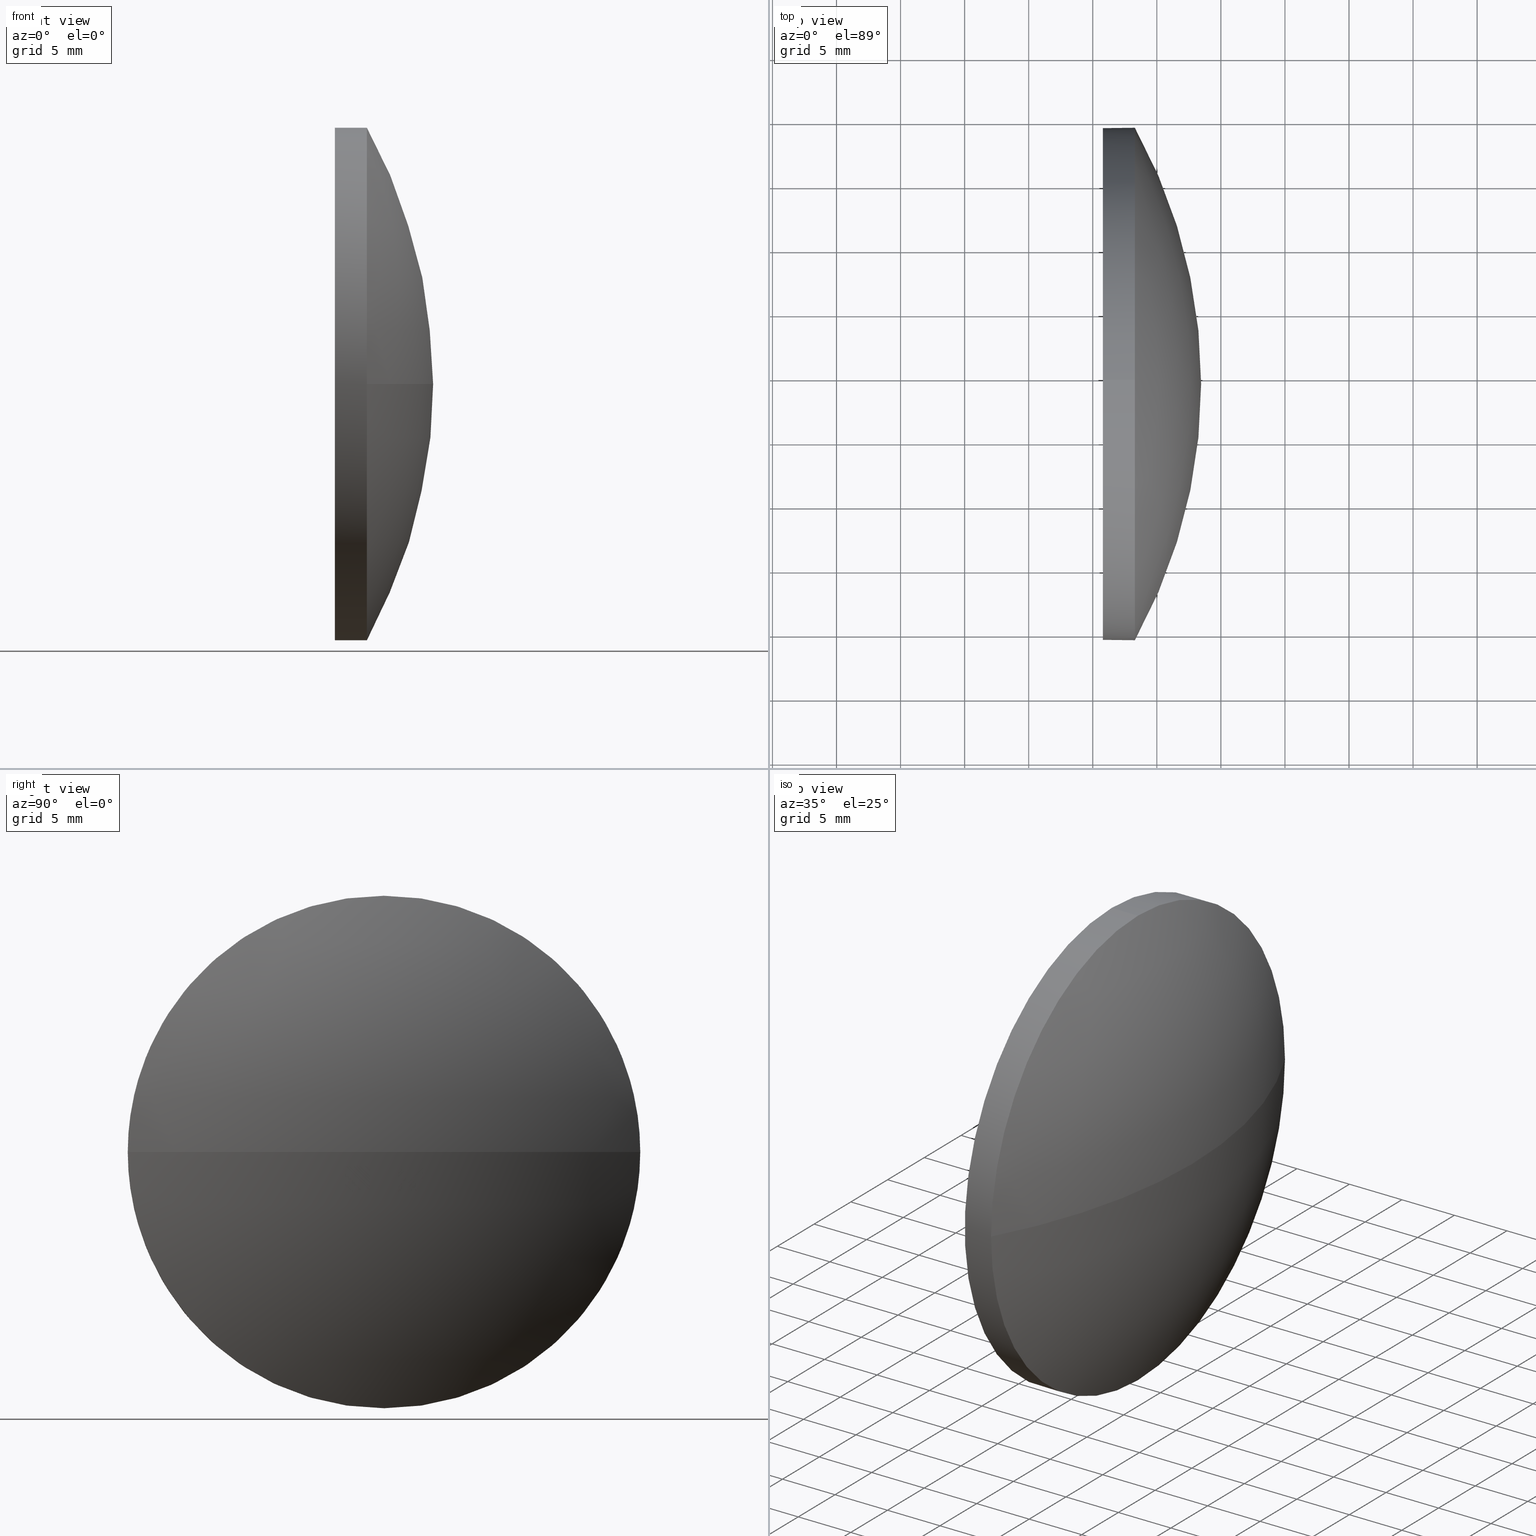
[diagram: canonical four-view strip — front | top / right | iso, engineering-drawing reading convention]
A machine part, canonical four-view strip (front | top / right | iso — engineering-drawing reading convention). The complete STEP part file that produces these views, byte-faithful:
ISO-10303-21;
HEADER;
FILE_DESCRIPTION (( 'STEP AP214' ),
    '1' );
FILE_NAME ('100229.STEP',
    '2019-05-24T06:13:26',
    ( '' ),
    ( '' ),
    'SwSTEP 2.0',
    'SolidWorks 2016',
    '' );
FILE_SCHEMA (( 'AUTOMOTIVE_DESIGN' ));
ENDSEC;

DATA;
#1 = PRESENTATION_LAYER_ASSIGNMENT (  '', '', ( #154 ) ) ;
#2 = CLOSED_SHELL ( 'NONE', ( #176, #162, #117, #180, #72 ) ) ;
#3 = AXIS2_PLACEMENT_3D ( 'NONE', #172, #131, #116 ) ;
#4 = COLOUR_RGB ( '',1.000000000000000000, 1.000000000000000000, 1.000000000000000000 ) ;
#5 = EDGE_CURVE ( 'NONE', #145, #112, #186, .T. ) ;
#6 = CARTESIAN_POINT ( 'NONE',  ( 413.2899099392475400, -30.60755764646728500, 0.0000000000000000000 ) ) ;
#7 = PRESENTATION_STYLE_ASSIGNMENT (( #113 ) ) ;
#8 = DIRECTION ( 'NONE',  ( -1.000000000000000000, -0.0000000000000000000, -0.0000000000000000000 ) ) ;
#9 = CIRCLE ( 'NONE', #114, 20.00000000000000400 ) ;
#10 = APPLICATION_PROTOCOL_DEFINITION ( 'draft international standard', 'automotive_design', 1998, #185 ) ;
#11 = CYLINDRICAL_SURFACE ( 'NONE', #54, 20.00000000000000400 ) ;
#12 = VERTEX_POINT ( 'NONE', #24 ) ;
#13 = LINE ( 'NONE', #149, #20 ) ;
#14 = MECHANICAL_DESIGN_GEOMETRIC_PRESENTATION_REPRESENTATION (  '', ( #154 ), #78 ) ;
#15 = CARTESIAN_POINT ( 'NONE',  ( 410.7899099392475400, -30.60755764646728500, 0.0000000000000000000 ) ) ;
#16 = VERTEX_POINT ( 'NONE', #148 ) ;
#17 = SHAPE_DEFINITION_REPRESENTATION ( #106, #67 ) ;
#18 = VERTEX_POINT ( 'NONE', #161 ) ;
#19 = DIRECTION ( 'NONE',  ( 0.0000000000000000000, 0.0000000000000000000, 1.000000000000000000 ) ) ;
#20 = VECTOR ( 'NONE', #146, 1000.000000000000000 ) ;
#21 = FACE_OUTER_BOUND ( 'NONE', #50, .T. ) ;
#22 = AXIS2_PLACEMENT_3D ( 'NONE', #143, #110, #182 ) ;
#23 = AXIS2_PLACEMENT_3D ( 'NONE', #15, #173, #115 ) ;
#24 = CARTESIAN_POINT ( 'NONE',  ( 413.2899099392475400, -30.60755764646728500, 20.00000000000000400 ) ) ;
#25 = CIRCLE ( 'NONE', #177, 41.26971953578328800 ) ;
#26 = DIRECTION ( 'NONE',  ( 0.0000000000000000000, -1.000000000000000000, -1.224646799147353200E-016 ) ) ;
#27 = AXIS2_PLACEMENT_3D ( 'NONE', #57, #31, #164 ) ;
#28 = SPHERICAL_SURFACE ( 'NONE', #105, 41.26971953578328800 ) ;
#29 = CARTESIAN_POINT ( 'NONE',  ( 413.2899099392475400, -10.60755764646727600, 2.449293598294704500E-015 ) ) ;
#30 = CYLINDRICAL_SURFACE ( 'NONE', #66, 20.00000000000000400 ) ;
#31 = DIRECTION ( 'NONE',  ( -1.000000000000000000, -0.0000000000000000000, -0.0000000000000000000 ) ) ;
#32 = DIRECTION ( 'NONE',  ( 0.0000000000000000000, -1.000000000000000000, 0.0000000000000000000 ) ) ;
#33 = PRODUCT_DEFINITION ( 'δ֪', '', #48, #156 ) ;
#34 = MECHANICAL_DESIGN_GEOMETRIC_PRESENTATION_REPRESENTATION (  '', ( #44 ), #184 ) ;
#35 = ORIENTED_EDGE ( 'NONE', *, *, #60, .F. ) ;
#36 = AXIS2_PLACEMENT_3D ( 'NONE', #56, #8, #104 ) ;
#37 = SURFACE_STYLE_FILL_AREA ( #52 ) ;
#38 =( NAMED_UNIT ( * ) SI_UNIT ( $, .STERADIAN. ) SOLID_ANGLE_UNIT ( ) );
#39 = EDGE_CURVE ( 'NONE', #12, #145, #13, .T. ) ;
#40 = MANIFOLD_SOLID_BREP ( '��ת1', #2 ) ;
#41 = CIRCLE ( 'NONE', #36, 20.00000000000000400 ) ;
#42 = ORIENTED_EDGE ( 'NONE', *, *, #153, .F. ) ;
#43 = DIRECTION ( 'NONE',  ( 0.0000000000000000000, 0.0000000000000000000, 1.000000000000000000 ) ) ;
#44 = STYLED_ITEM ( 'NONE', ( #7 ), #40 ) ;
#45 = VECTOR ( 'NONE', #163, 1000.000000000000000 ) ;
#46 = APPLICATION_PROTOCOL_DEFINITION ( 'draft international standard', 'automotive_design', 1998, #168 ) ;
#47 = VERTEX_POINT ( 'NONE', #174 ) ;
#48 = PRODUCT_DEFINITION_FORMATION_WITH_SPECIFIED_SOURCE ( '�κ�', '', #91, .NOT_KNOWN. ) ;
#49 = PRESENTATION_LAYER_ASSIGNMENT (  '', '', ( #44 ) ) ;
#50 = EDGE_LOOP ( 'NONE', ( #83, #137, #58, #109, #42 ) ) ;
#51 = FILL_AREA_STYLE_COLOUR ( '', #4 ) ;
#52 = FILL_AREA_STYLE ('',( #51 ) ) ;
#53 = CARTESIAN_POINT ( 'NONE',  ( 410.7899099392475400, -30.60755764646728500, 0.0000000000000000000 ) ) ;
#54 = AXIS2_PLACEMENT_3D ( 'NONE', #88, #178, #150 ) ;
#55 = DIRECTION ( 'NONE',  ( -1.000000000000000000, -0.0000000000000000000, -0.0000000000000000000 ) ) ;
#56 = CARTESIAN_POINT ( 'NONE',  ( 413.2899099392475400, -30.60755764646728500, 0.0000000000000000000 ) ) ;
#57 = CARTESIAN_POINT ( 'NONE',  ( 413.2899099392475400, -30.60755764646728500, 0.0000000000000000000 ) ) ;
#58 = ORIENTED_EDGE ( 'NONE', *, *, #92, .T. ) ;
#59 = CARTESIAN_POINT ( 'NONE',  ( 410.7899099392475400, -30.60755764646728100, -20.00000000000000400 ) ) ;
#60 = EDGE_CURVE ( 'NONE', #18, #179, #25, .T. ) ;
#61 = SURFACE_SIDE_STYLE ('',( #155 ) ) ;
#62 =( NAMED_UNIT ( * ) PLANE_ANGLE_UNIT ( ) SI_UNIT ( $, .RADIAN. ) );
#63 = EDGE_LOOP ( 'NONE', ( #157, #76, #125, #118 ) ) ;
#64 = EDGE_CURVE ( 'NONE', #18, #16, #183, .T. ) ;
#65 = SPHERICAL_SURFACE ( 'NONE', #84, 41.26971953578328800 ) ;
#66 = AXIS2_PLACEMENT_3D ( 'NONE', #139, #74, #80 ) ;
#67 = ADVANCED_BREP_SHAPE_REPRESENTATION ( '100229', ( #40, #22 ), #128 ) ;
#68 = DIRECTION ( 'NONE',  ( 0.0000000000000000000, 0.0000000000000000000, -1.000000000000000000 ) ) ;
#69 = PRODUCT_RELATED_PRODUCT_CATEGORY ( 'part', '', ( #91 ) ) ;
#70 = DIRECTION ( 'NONE',  ( 1.000000000000000000, 0.0000000000000000000, 0.0000000000000000000 ) ) ;
#71 = ORIENTED_EDGE ( 'NONE', *, *, #127, .F. ) ;
#72 = ADVANCED_FACE ( 'NONE', ( #147 ), #159, .F. ) ;
#73 = AXIS2_PLACEMENT_3D ( 'NONE', #53, #70, #68 ) ;
#74 = DIRECTION ( 'NONE',  ( -1.000000000000000000, -0.0000000000000000000, -0.0000000000000000000 ) ) ;
#75 = DIRECTION ( 'NONE',  ( 0.0000000000000000000, 0.0000000000000000000, 1.000000000000000000 ) ) ;
#76 = ORIENTED_EDGE ( 'NONE', *, *, #60, .T. ) ;
#77 =( LENGTH_UNIT ( ) NAMED_UNIT ( * ) SI_UNIT ( .MILLI., .METRE. ) );
#78 =( GEOMETRIC_REPRESENTATION_CONTEXT ( 3 ) GLOBAL_UNCERTAINTY_ASSIGNED_CONTEXT ( ( #82 ) ) GLOBAL_UNIT_ASSIGNED_CONTEXT ( ( #81, #141, #126 ) ) REPRESENTATION_CONTEXT ( 'NONE', 'WORKASPACE' ) );
#79 = ORIENTED_EDGE ( 'NONE', *, *, #153, .T. ) ;
#80 = DIRECTION ( 'NONE',  ( 0.0000000000000000000, 0.0000000000000000000, 1.000000000000000000 ) ) ;
#81 =( LENGTH_UNIT ( ) NAMED_UNIT ( * ) SI_UNIT ( .MILLI., .METRE. ) );
#82 = UNCERTAINTY_MEASURE_WITH_UNIT (LENGTH_MEASURE( 1.000000000000000100E-005 ), #81, 'distance_accuracy_value', 'NONE');
#83 = ORIENTED_EDGE ( 'NONE', *, *, #94, .F. ) ;
#84 = AXIS2_PLACEMENT_3D ( 'NONE', #124, #43, #32 ) ;
#85 = ORIENTED_EDGE ( 'NONE', *, *, #5, .F. ) ;
#86 = AXIS2_PLACEMENT_3D ( 'NONE', #6, #120, #122 ) ;
#87 =( LENGTH_UNIT ( ) NAMED_UNIT ( * ) SI_UNIT ( .MILLI., .METRE. ) );
#88 = CARTESIAN_POINT ( 'NONE',  ( 406.8249563282615800, -30.60755764646728500, 0.0000000000000000000 ) ) ;
#89 = CARTESIAN_POINT ( 'NONE',  ( 406.8249563282615800, -30.60755764646728100, -20.00000000000000400 ) ) ;
#90 = ORIENTED_EDGE ( 'NONE', *, *, #64, .T. ) ;
#91 = PRODUCT ( '100229', '100229', '', ( #166 ) ) ;
#92 = EDGE_CURVE ( 'NONE', #16, #12, #107, .T. ) ;
#93 = FILL_AREA_STYLE ('',( #140 ) ) ;
#94 = EDGE_CURVE ( 'NONE', #47, #112, #102, .T. ) ;
#95 = EDGE_LOOP ( 'NONE', ( #103, #169, #85, #101, #123 ) ) ;
#96 = AXIS2_PLACEMENT_3D ( 'NONE', #119, #55, #138 ) ;
#97 = PRESENTATION_STYLE_ASSIGNMENT (( #108 ) ) ;
#98 = FACE_OUTER_BOUND ( 'NONE', #63, .T. ) ;
#99 = UNCERTAINTY_MEASURE_WITH_UNIT (LENGTH_MEASURE( 1.000000000000000100E-005 ), #77, 'distance_accuracy_value', 'NONE');
#100 = EDGE_CURVE ( 'NONE', #179, #47, #151, .T. ) ;
#101 = ORIENTED_EDGE ( 'NONE', *, *, #39, .F. ) ;
#102 = LINE ( 'NONE', #89, #45 ) ;
#103 = ORIENTED_EDGE ( 'NONE', *, *, #100, .T. ) ;
#104 = DIRECTION ( 'NONE',  ( 0.0000000000000000000, 0.0000000000000000000, 1.000000000000000000 ) ) ;
#105 = AXIS2_PLACEMENT_3D ( 'NONE', #152, #75, #181 ) ;
#106 = PRODUCT_DEFINITION_SHAPE ( 'NONE', 'NONE',  #33 ) ;
#107 = CIRCLE ( 'NONE', #86, 20.00000000000000400 ) ;
#108 = SURFACE_STYLE_USAGE ( .BOTH. , #61 ) ;
#109 = ORIENTED_EDGE ( 'NONE', *, *, #39, .T. ) ;
#110 = DIRECTION ( 'NONE',  ( 0.0000000000000000000, 0.0000000000000000000, 1.000000000000000000 ) ) ;
#111 = CIRCLE ( 'NONE', #96, 20.00000000000000400 ) ;
#112 = VERTEX_POINT ( 'NONE', #59 ) ;
#113 = SURFACE_STYLE_USAGE ( .BOTH. , #134 ) ;
#114 = AXIS2_PLACEMENT_3D ( 'NONE', #175, #136, #19 ) ;
#115 = DIRECTION ( 'NONE',  ( 0.0000000000000000000, 0.0000000000000000000, 1.000000000000000000 ) ) ;
#116 = DIRECTION ( 'NONE',  ( -1.000000000000000000, 0.0000000000000000000, 0.0000000000000000000 ) ) ;
#117 = ADVANCED_FACE ( 'NONE', ( #165 ), #65, .T. ) ;
#118 = ORIENTED_EDGE ( 'NONE', *, *, #92, .F. ) ;
#119 = CARTESIAN_POINT ( 'NONE',  ( 410.7899099392475400, -30.60755764646728500, 0.0000000000000000000 ) ) ;
#120 = DIRECTION ( 'NONE',  ( -1.000000000000000000, -0.0000000000000000000, -0.0000000000000000000 ) ) ;
#121 = CARTESIAN_POINT ( 'NONE',  ( 410.7899099392475400, -30.60755764646728500, 20.00000000000000400 ) ) ;
#122 = DIRECTION ( 'NONE',  ( 0.0000000000000000000, 0.0000000000000000000, 1.000000000000000000 ) ) ;
#123 = ORIENTED_EDGE ( 'NONE', *, *, #170, .T. ) ;
#124 = CARTESIAN_POINT ( 'NONE',  ( 377.1901904034642700, -30.60755764646726400, 0.0000000000000000000 ) ) ;
#125 = ORIENTED_EDGE ( 'NONE', *, *, #170, .F. ) ;
#126 =( NAMED_UNIT ( * ) SI_UNIT ( $, .STERADIAN. ) SOLID_ANGLE_UNIT ( ) );
#127 = EDGE_CURVE ( 'NONE', #47, #16, #41, .T. ) ;
#128 =( GEOMETRIC_REPRESENTATION_CONTEXT ( 3 ) GLOBAL_UNCERTAINTY_ASSIGNED_CONTEXT ( ( #99 ) ) GLOBAL_UNIT_ASSIGNED_CONTEXT ( ( #77, #62, #144 ) ) REPRESENTATION_CONTEXT ( 'NONE', 'WORKASPACE' ) );
#129 = ORIENTED_EDGE ( 'NONE', *, *, #5, .T. ) ;
#130 = ORIENTED_EDGE ( 'NONE', *, *, #100, .F. ) ;
#131 = DIRECTION ( 'NONE',  ( 0.0000000000000000000, 0.0000000000000000000, -1.000000000000000000 ) ) ;
#132 =( NAMED_UNIT ( * ) PLANE_ANGLE_UNIT ( ) SI_UNIT ( $, .RADIAN. ) );
#133 = COLOUR_RGB ( '',1.000000000000000000, 1.000000000000000000, 1.000000000000000000 ) ;
#134 = SURFACE_SIDE_STYLE ('',( #37 ) ) ;
#135 = CARTESIAN_POINT ( 'NONE',  ( 377.1901904034642700, -30.60755764646726400, 0.0000000000000000000 ) ) ;
#136 = DIRECTION ( 'NONE',  ( -1.000000000000000000, -0.0000000000000000000, -0.0000000000000000000 ) ) ;
#137 = ORIENTED_EDGE ( 'NONE', *, *, #127, .T. ) ;
#138 = DIRECTION ( 'NONE',  ( 0.0000000000000000000, 0.0000000000000000000, 1.000000000000000000 ) ) ;
#139 = CARTESIAN_POINT ( 'NONE',  ( 406.8249563282615800, -30.60755764646728500, 0.0000000000000000000 ) ) ;
#140 = FILL_AREA_STYLE_COLOUR ( '', #133 ) ;
#141 =( NAMED_UNIT ( * ) PLANE_ANGLE_UNIT ( ) SI_UNIT ( $, .RADIAN. ) );
#142 = UNCERTAINTY_MEASURE_WITH_UNIT (LENGTH_MEASURE( 1.000000000000000100E-005 ), #87, 'distance_accuracy_value', 'NONE');
#143 = CARTESIAN_POINT ( 'NONE',  ( 0.0000000000000000000, 0.0000000000000000000, 0.0000000000000000000 ) ) ;
#144 =( NAMED_UNIT ( * ) SI_UNIT ( $, .STERADIAN. ) SOLID_ANGLE_UNIT ( ) );
#145 = VERTEX_POINT ( 'NONE', #121 ) ;
#146 = DIRECTION ( 'NONE',  ( -1.000000000000000000, -0.0000000000000000000, -0.0000000000000000000 ) ) ;
#147 = FACE_OUTER_BOUND ( 'NONE', #167, .T. ) ;
#148 = CARTESIAN_POINT ( 'NONE',  ( 413.2899099392475400, -50.60755764646727100, 0.0000000000000000000 ) ) ;
#149 = CARTESIAN_POINT ( 'NONE',  ( 406.8249563282615800, -30.60755764646728500, 20.00000000000000400 ) ) ;
#150 = DIRECTION ( 'NONE',  ( 0.0000000000000000000, 0.0000000000000000000, 1.000000000000000000 ) ) ;
#151 = CIRCLE ( 'NONE', #27, 20.00000000000000400 ) ;
#152 = CARTESIAN_POINT ( 'NONE',  ( 377.1901904034642700, -30.60755764646726400, 0.0000000000000000000 ) ) ;
#153 = EDGE_CURVE ( 'NONE', #112, #145, #111, .T. ) ;
#154 = STYLED_ITEM ( 'NONE', ( #97 ), #67 ) ;
#155 = SURFACE_STYLE_FILL_AREA ( #93 ) ;
#156 = PRODUCT_DEFINITION_CONTEXT ( 'detailed design', #168, 'design' ) ;
#157 = ORIENTED_EDGE ( 'NONE', *, *, #64, .F. ) ;
#158 = FACE_OUTER_BOUND ( 'NONE', #95, .T. ) ;
#159 = PLANE ( 'NONE',  #73 ) ;
#160 = DIRECTION ( 'NONE',  ( 0.0000000000000000000, -1.224646799147353200E-016, 1.000000000000000000 ) ) ;
#161 = CARTESIAN_POINT ( 'NONE',  ( 418.4599099392475500, -30.60755764646726700, 0.0000000000000000000 ) ) ;
#162 = ADVANCED_FACE ( 'NONE', ( #98 ), #28, .T. ) ;
#163 = DIRECTION ( 'NONE',  ( -1.000000000000000000, -0.0000000000000000000, -0.0000000000000000000 ) ) ;
#164 = DIRECTION ( 'NONE',  ( 0.0000000000000000000, 0.0000000000000000000, 1.000000000000000000 ) ) ;
#165 = FACE_OUTER_BOUND ( 'NONE', #171, .T. ) ;
#166 = PRODUCT_CONTEXT ( 'NONE', #185, 'mechanical' ) ;
#167 = EDGE_LOOP ( 'NONE', ( #129, #79 ) ) ;
#168 = APPLICATION_CONTEXT ( 'automotive_design' ) ;
#169 = ORIENTED_EDGE ( 'NONE', *, *, #94, .T. ) ;
#170 = EDGE_CURVE ( 'NONE', #12, #179, #9, .T. ) ;
#171 = EDGE_LOOP ( 'NONE', ( #35, #90, #71, #130 ) ) ;
#172 = CARTESIAN_POINT ( 'NONE',  ( 377.1901904034642700, -30.60755764646726400, 0.0000000000000000000 ) ) ;
#173 = DIRECTION ( 'NONE',  ( -1.000000000000000000, -0.0000000000000000000, -0.0000000000000000000 ) ) ;
#174 = CARTESIAN_POINT ( 'NONE',  ( 413.2899099392475400, -30.60755764646728100, -20.00000000000000400 ) ) ;
#175 = CARTESIAN_POINT ( 'NONE',  ( 413.2899099392475400, -30.60755764646728500, 0.0000000000000000000 ) ) ;
#176 = ADVANCED_FACE ( 'NONE', ( #158 ), #11, .T. ) ;
#177 = AXIS2_PLACEMENT_3D ( 'NONE', #135, #160, #26 ) ;
#178 = DIRECTION ( 'NONE',  ( -1.000000000000000000, -0.0000000000000000000, -0.0000000000000000000 ) ) ;
#179 = VERTEX_POINT ( 'NONE', #29 ) ;
#180 = ADVANCED_FACE ( 'NONE', ( #21 ), #30, .T. ) ;
#181 = DIRECTION ( 'NONE',  ( 0.0000000000000000000, -1.000000000000000000, 0.0000000000000000000 ) ) ;
#182 = DIRECTION ( 'NONE',  ( 1.000000000000000000, 0.0000000000000000000, 0.0000000000000000000 ) ) ;
#183 = CIRCLE ( 'NONE', #3, 41.26971953578328800 ) ;
#184 =( GEOMETRIC_REPRESENTATION_CONTEXT ( 3 ) GLOBAL_UNCERTAINTY_ASSIGNED_CONTEXT ( ( #142 ) ) GLOBAL_UNIT_ASSIGNED_CONTEXT ( ( #87, #132, #38 ) ) REPRESENTATION_CONTEXT ( 'NONE', 'WORKASPACE' ) );
#185 = APPLICATION_CONTEXT ( 'automotive_design' ) ;
#186 = CIRCLE ( 'NONE', #23, 20.00000000000000400 ) ;
ENDSEC;
END-ISO-10303-21;
